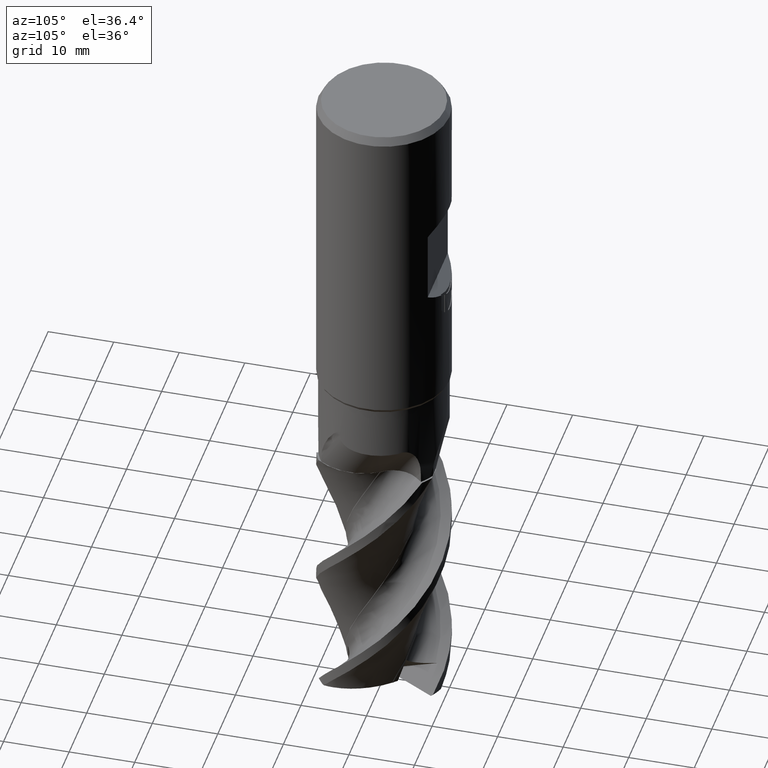
[diagram: clean part render]
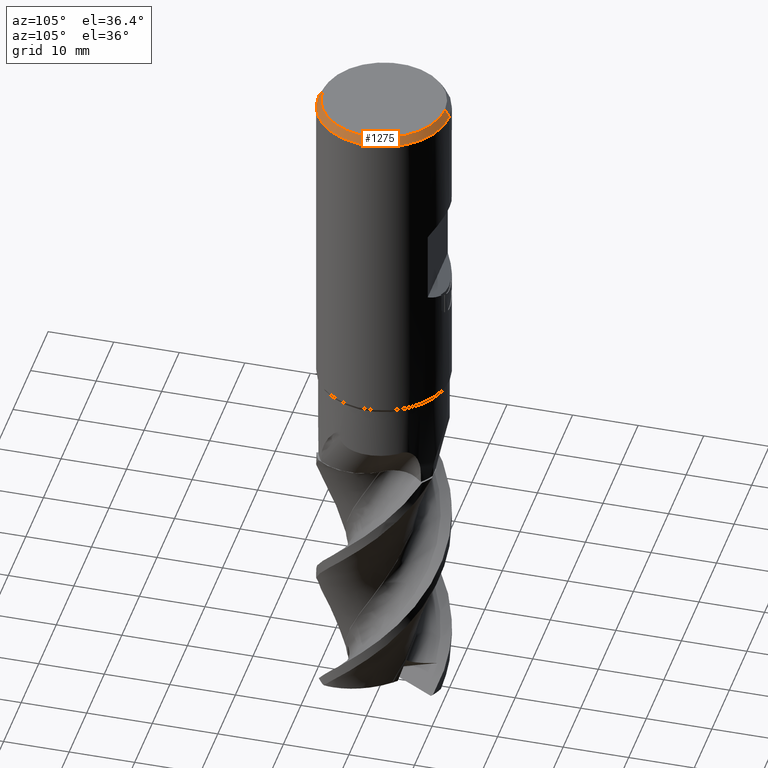
[diagram: same view with one face highlighted and labeled with its STEP entity id]
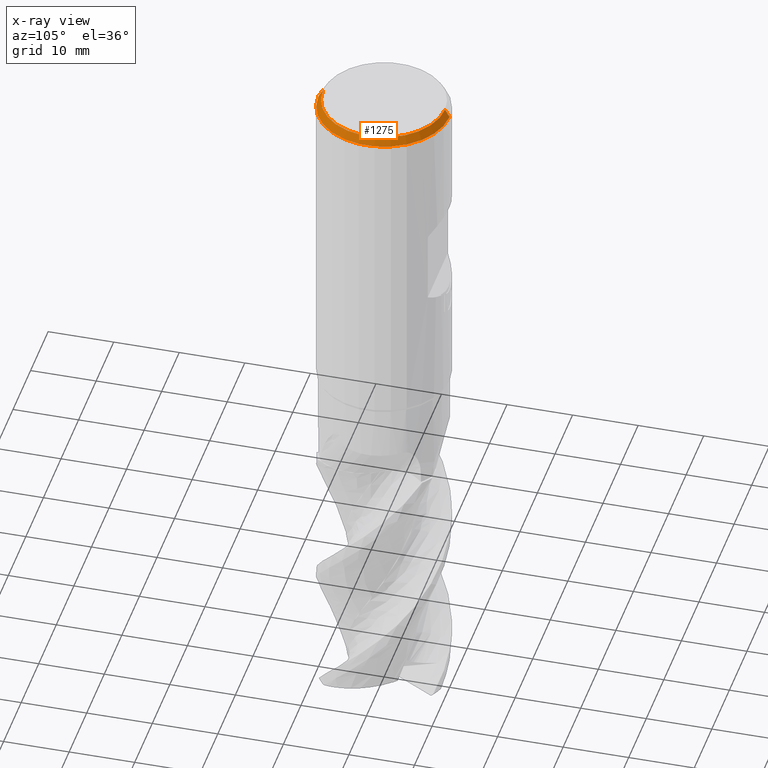
[diagram: x-ray of the same camera — body ghosted, the highlighted face saturated]
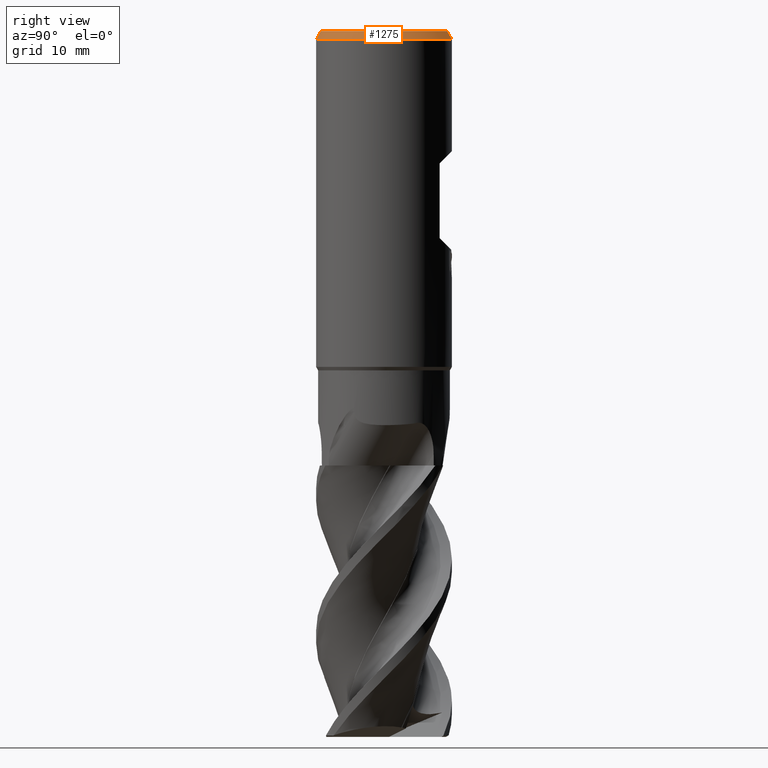
[diagram: same view with one face highlighted and labeled with its STEP entity id]
A machine part, auxiliary view. The second image highlights one B-rep face of the part: STEP entity #1275.
The next image is the same camera in x-ray: the body ghosted, the highlighted face saturated — about 0% of this face is hidden behind the body in this view.
A second angle (right view) of the same face is appended — the face is thin or edge-on in the first view.
In plain terms, the highlighted conical surface has half-angle 30 deg.
Its self-contained STEP definition (entity closure, byte-faithful):
#519=EDGE_CURVE('',#1097,#831,#1379,.T.);
#831=VERTEX_POINT('',#1721);
#927=EDGE_CURVE('',#1209,#1097,#1823,.T.);
#987=EDGE_CURVE('',#1019,#1209,#1890,.T.);
#1019=VERTEX_POINT('',#1924);
#1053=EDGE_CURVE('',#1019,#831,#1962,.T.);
#1097=VERTEX_POINT('',#2007);
#1209=VERTEX_POINT('',#2133);
#1275=ADVANCED_FACE('',(#2206),#2207,.T.);
#1379=LINE('',#3018,#3019);
#1721=CARTESIAN_POINT('',(1.1397631368587E-015,-9.30717967697245,0.0));
#1823=CIRCLE('',#6815,10.0);
#1890=LINE('',#7539,#7540);
#1924=CARTESIAN_POINT('',(0.0,9.30717967697245,0.0));
#1962=CIRCLE('',#8356,9.30717967697245);
#2007=CARTESIAN_POINT('',(1.22460635382238E-015,-10.0,-1.2));
#2133=CARTESIAN_POINT('',(0.0,10.0,-1.2));
#2206=FACE_OUTER_BOUND('',#9766,.T.);
#2207=CONICAL_SURFACE('',#9767,9.65358983848622,0.523598775598298);
#3018=CARTESIAN_POINT('',(1.18218474534054E-015,-9.65358983848622,-0.600000000000001));
#3019=VECTOR('',#9875,1.0);
#6815=AXIS2_PLACEMENT_3D('',#10388,#10389,#10390);
#7539=CARTESIAN_POINT('',(-1.18218474534054E-015,9.65358983848622,-0.600000000000001));
#7540=VECTOR('',#10472,1.0);
#8356=AXIS2_PLACEMENT_3D('',#10535,#10536,#10537);
#9766=EDGE_LOOP('',(#10815,#10816,#10817,#10818));
#9767=AXIS2_PLACEMENT_3D('',#10819,#10820,#10821);
#9875=DIRECTION('',(-6.12303176911187E-017,0.499999999999999,0.866025403784439));
#10388=CARTESIAN_POINT('',(0.0,0.0,-1.2));
#10389=DIRECTION('',(0.0,0.0,-1.0));
#10390=DIRECTION('',(0.0,1.0,0.0));
#10472=DIRECTION('',(-6.12303176911188E-017,0.499999999999999,-0.866025403784439));
#10535=CARTESIAN_POINT('',(0.0,0.0,0.0));
#10536=DIRECTION('',(0.0,0.0,-1.0));
#10537=DIRECTION('',(0.0,1.0,0.0));
#10815=ORIENTED_EDGE('',*,*,#987,.F.);
#10816=ORIENTED_EDGE('',*,*,#1053,.T.);
#10817=ORIENTED_EDGE('',*,*,#519,.F.);
#10818=ORIENTED_EDGE('',*,*,#927,.F.);
#10819=CARTESIAN_POINT('',(0.0,0.0,-0.600000000000001));
#10820=DIRECTION('',(0.0,-0.0,-1.0));
#10821=DIRECTION('',(0.0,1.0,0.0));